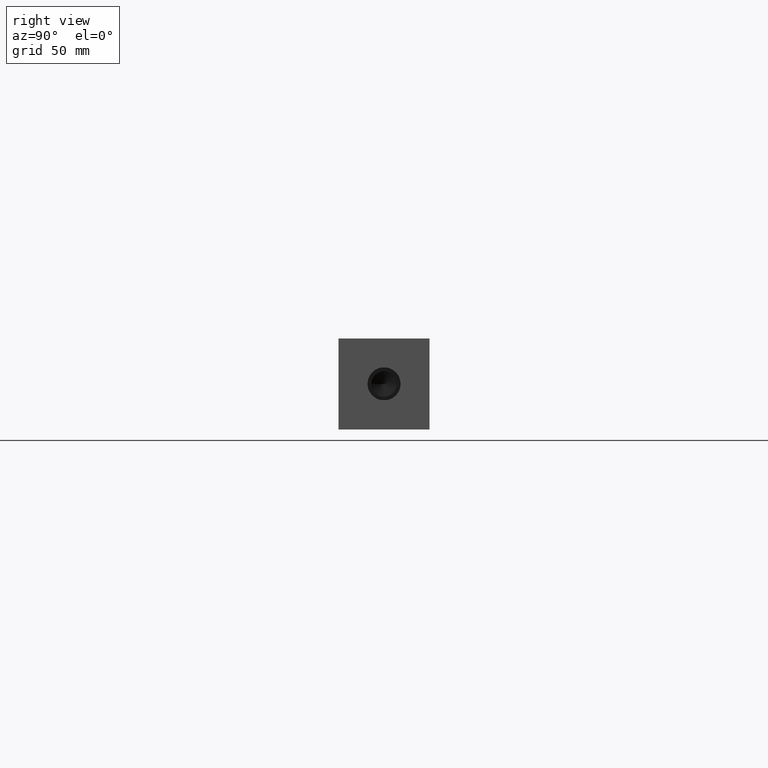
[diagram: clean part render]
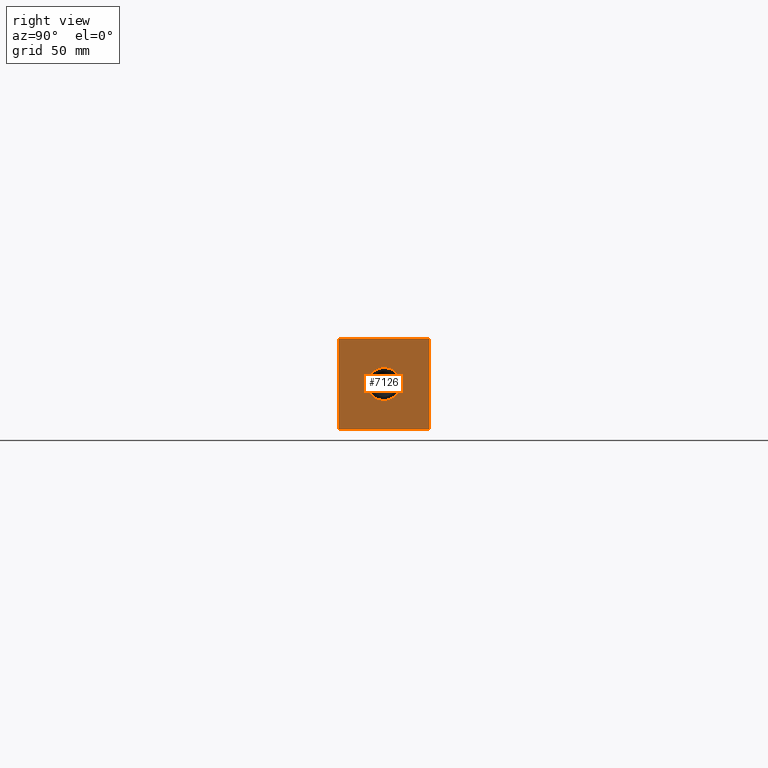
[diagram: same view with one face highlighted and labeled with its STEP entity id]
A machine part, right view. The second image highlights one B-rep face of the part: STEP entity #7126.
In plain terms, the highlighted planar face has unit normal (1, 0, 0).
Its self-contained STEP definition (entity closure, byte-faithful):
#147=CIRCLE('',#7481,6.9342);
#148=CIRCLE('',#7482,6.9342);
#211=FACE_BOUND('',#1211,.T.);
#429=PLANE('',#7497);
#792=FACE_OUTER_BOUND('',#1210,.T.);
#1210=EDGE_LOOP('',(#6340,#6341,#6342,#6343));
#1211=EDGE_LOOP('',(#6344,#6345));
#1458=LINE('',#11038,#2125);
#1884=LINE('',#12258,#2551);
#1885=LINE('',#12261,#2552);
#1886=LINE('',#12262,#2553);
#2125=VECTOR('',#7854,10.);
#2551=VECTOR('',#8872,10.);
#2552=VECTOR('',#8875,10.);
#2553=VECTOR('',#8876,10.);
#3056=VERTEX_POINT('',#11035);
#3057=VERTEX_POINT('',#11037);
#3415=VERTEX_POINT('',#12220);
#3416=VERTEX_POINT('',#12221);
#3427=VERTEX_POINT('',#12256);
#3428=VERTEX_POINT('',#12260);
#3862=EDGE_CURVE('',#3056,#3057,#1458,.T.);
#4386=EDGE_CURVE('',#3415,#3416,#147,.T.);
#4387=EDGE_CURVE('',#3416,#3415,#148,.T.);
#4404=EDGE_CURVE('',#3427,#3057,#1884,.T.);
#4405=EDGE_CURVE('',#3428,#3427,#1885,.T.);
#4406=EDGE_CURVE('',#3428,#3056,#1886,.T.);
#6340=ORIENTED_EDGE('',*,*,#4405,.T.);
#6341=ORIENTED_EDGE('',*,*,#4404,.T.);
#6342=ORIENTED_EDGE('',*,*,#3862,.F.);
#6343=ORIENTED_EDGE('',*,*,#4406,.F.);
#6344=ORIENTED_EDGE('',*,*,#4386,.T.);
#6345=ORIENTED_EDGE('',*,*,#4387,.T.);
#7126=ADVANCED_FACE('',(#792,#211),#429,.T.);
#7481=AXIS2_PLACEMENT_3D('',#12222,#8831,#8832);
#7482=AXIS2_PLACEMENT_3D('',#12223,#8833,#8834);
#7497=AXIS2_PLACEMENT_3D('',#12259,#8873,#8874);
#7854=DIRECTION('',(0.,1.,0.));
#8831=DIRECTION('center_axis',(-1.,0.,0.));
#8832=DIRECTION('ref_axis',(0.,1.,0.));
#8833=DIRECTION('center_axis',(-1.,0.,0.));
#8834=DIRECTION('ref_axis',(0.,1.,0.));
#8872=DIRECTION('',(0.,0.,1.));
#8873=DIRECTION('center_axis',(1.,0.,0.));
#8874=DIRECTION('ref_axis',(0.,1.,0.));
#8875=DIRECTION('',(0.,1.,0.));
#8876=DIRECTION('',(0.,0.,1.));
#11035=CARTESIAN_POINT('',(301.625,0.,38.1));
#11037=CARTESIAN_POINT('',(301.625,38.1,38.1));
#11038=CARTESIAN_POINT('',(301.625,0.,38.1));
#12220=CARTESIAN_POINT('',(301.625,25.9842,19.05));
#12221=CARTESIAN_POINT('',(301.625,12.1158,19.05));
#12222=CARTESIAN_POINT('Origin',(301.625,19.05,19.05));
#12223=CARTESIAN_POINT('Origin',(301.625,19.05,19.05));
#12256=CARTESIAN_POINT('',(301.625,38.1,0.));
#12258=CARTESIAN_POINT('',(301.625,38.1,0.));
#12259=CARTESIAN_POINT('Origin',(301.625,0.,0.));
#12260=CARTESIAN_POINT('',(301.625,0.,0.));
#12261=CARTESIAN_POINT('',(301.625,0.,0.));
#12262=CARTESIAN_POINT('',(301.625,0.,0.));